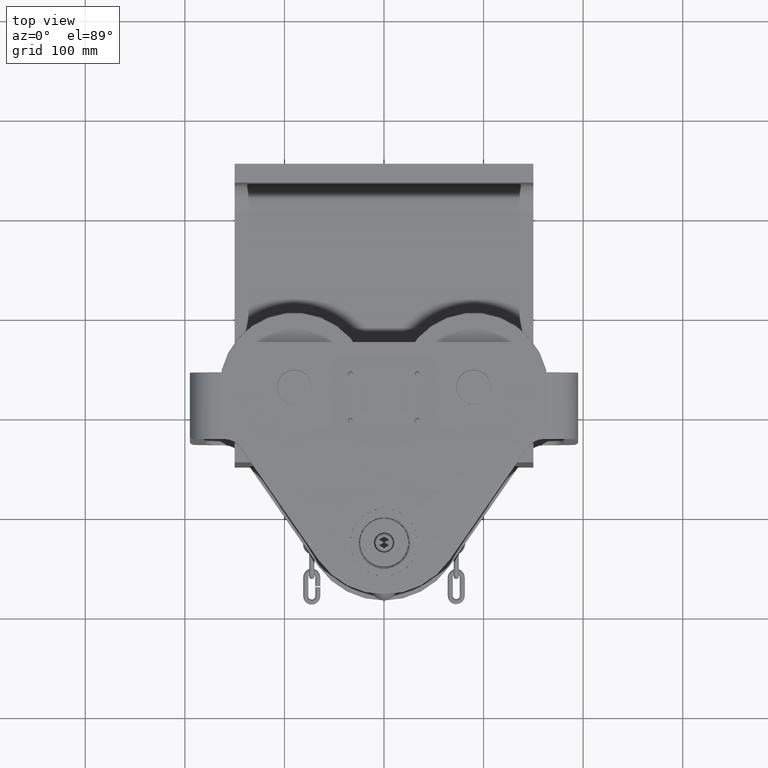
[diagram: clean part render]
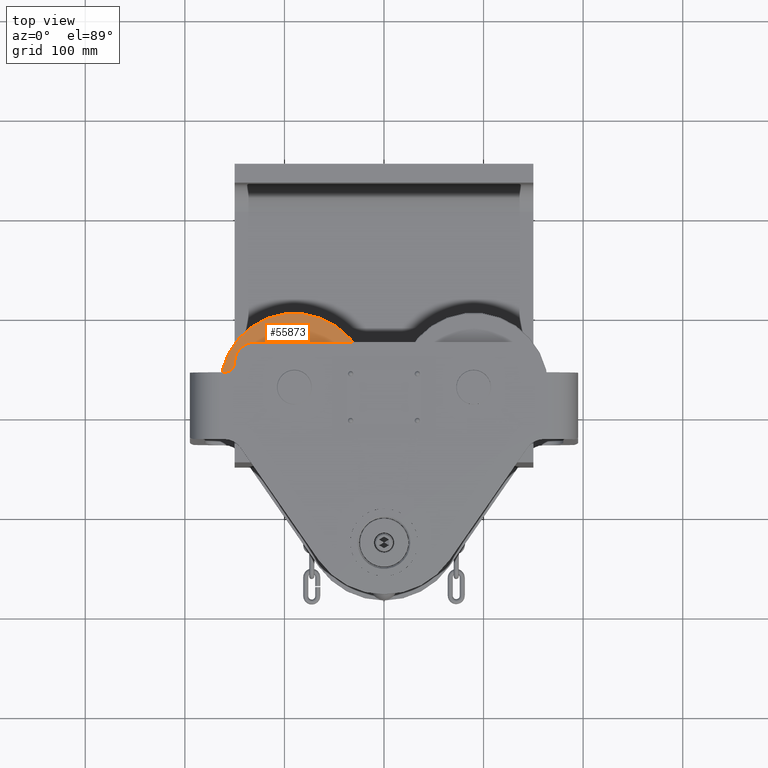
[diagram: same view with one face highlighted and labeled with its STEP entity id]
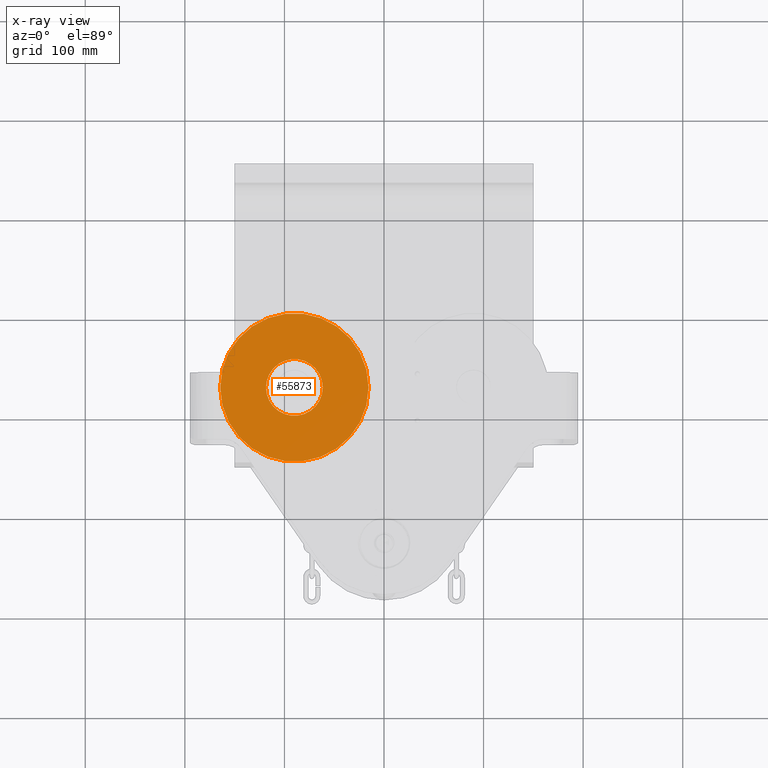
[diagram: x-ray of the same camera — body ghosted, the highlighted face saturated]
A machine part, top view. The second image highlights one B-rep face of the part: STEP entity #55873.
The next image is the same camera in x-ray: the body ghosted, the highlighted face saturated — about 0% of this face is hidden behind the body in this view.
In plain terms, the highlighted planar face has unit normal (0, 0, -1).
Its self-contained STEP definition (entity closure, byte-faithful):
#139 = ORIENTED_EDGE ( 'NONE', *, *, #1532, .T. ) ;
#1532 = EDGE_CURVE ( 'NONE', #43975, #43975, #22826, .T. ) ;
#7356 = AXIS2_PLACEMENT_3D ( 'NONE', #11653, #29354, #10871 ) ;
#8549 = AXIS2_PLACEMENT_3D ( 'NONE', #59782, #22704, #22903 ) ;
#9044 = FACE_OUTER_BOUND ( 'NONE', #24380, .T. ) ;
#10871 = DIRECTION ( 'NONE',  ( 1.000000000000000000, 0.0000000000000000000, 0.0000000000000000000 ) ) ;
#11653 = CARTESIAN_POINT ( 'NONE',  ( -89.99999999999997200, -74.99999999999991500, 162.0000000000005400 ) ) ;
#11902 = PLANE ( 'NONE',  #48256 ) ;
#13860 = ORIENTED_EDGE ( 'NONE', *, *, #33447, .F. ) ;
#14030 = EDGE_LOOP ( 'NONE', ( #13860 ) ) ;
#14767 = CARTESIAN_POINT ( 'NONE',  ( -164.4999999999999400, -74.99999999999991500, 162.0000000000005400 ) ) ;
#22704 = DIRECTION ( 'NONE',  ( -0.0000000000000000000, -0.0000000000000000000, 1.000000000000000000 ) ) ;
#22826 = CIRCLE ( 'NONE', #8549, 74.49999999999998600 ) ;
#22903 = DIRECTION ( 'NONE',  ( -1.000000000000000000, 0.0000000000000000000, 0.0000000000000000000 ) ) ;
#24380 = EDGE_LOOP ( 'NONE', ( #139 ) ) ;
#26533 = DIRECTION ( 'NONE',  ( 0.0000000000000000000, 0.0000000000000000000, -1.000000000000000000 ) ) ;
#27096 = VERTEX_POINT ( 'NONE', #55871 ) ;
#29354 = DIRECTION ( 'NONE',  ( 0.0000000000000000000, 0.0000000000000000000, 1.000000000000000000 ) ) ;
#30942 = CIRCLE ( 'NONE', #7356, 28.49999999999999600 ) ;
#33447 = EDGE_CURVE ( 'NONE', #27096, #27096, #30942, .T. ) ;
#42459 = FACE_BOUND ( 'NONE', #14030, .T. ) ;
#43975 = VERTEX_POINT ( 'NONE', #14767 ) ;
#48256 = AXIS2_PLACEMENT_3D ( 'NONE', #54287, #26533, #53889 ) ;
#53889 = DIRECTION ( 'NONE',  ( -1.000000000000000000, 0.0000000000000000000, 0.0000000000000000000 ) ) ;
#54287 = CARTESIAN_POINT ( 'NONE',  ( -89.99999999999997200, 8.326672684688674100E-014, 162.0000000000005400 ) ) ;
#55871 = CARTESIAN_POINT ( 'NONE',  ( -61.49999999999997200, -74.99999999999991500, 162.0000000000005400 ) ) ;
#55873 = ADVANCED_FACE ( 'NONE', ( #9044, #42459 ), #11902, .F. ) ;
#59782 = CARTESIAN_POINT ( 'NONE',  ( -89.99999999999997200, -74.99999999999991500, 162.0000000000005400 ) ) ;